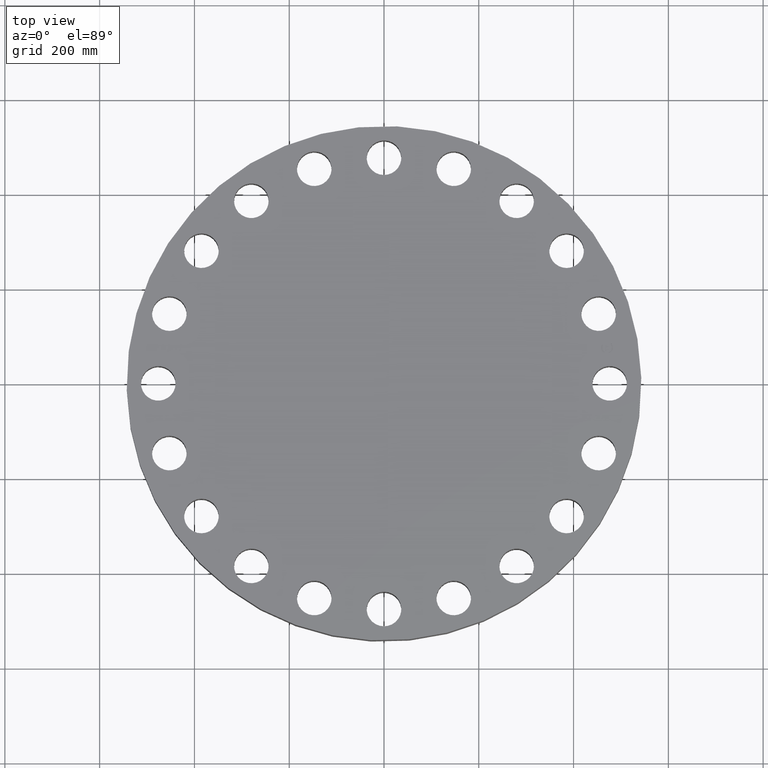
[diagram: clean part render]
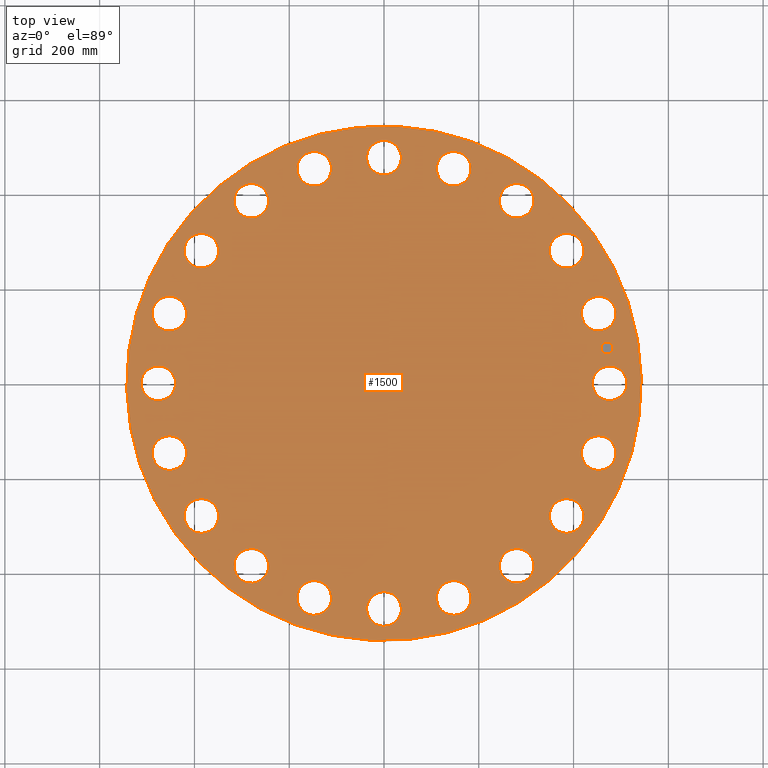
[diagram: same view with one face highlighted and labeled with its STEP entity id]
A machine part, top view. The second image highlights one B-rep face of the part: STEP entity #1500.
In plain terms, the highlighted planar face has unit normal (0, 0, -1).
Its self-contained STEP definition (entity closure, byte-faithful):
#65=AXIS2_PLACEMENT_3D('Circle Axis2P3D',#63,#64,$) ;
#82=AXIS2_PLACEMENT_3D('Circle Axis2P3D',#80,#81,$) ;
#115=AXIS2_PLACEMENT_3D('Circle Axis2P3D',#113,#114,$) ;
#139=AXIS2_PLACEMENT_3D('Circle Axis2P3D',#137,#138,$) ;
#597=AXIS2_PLACEMENT_3D('Circle Axis2P3D',#595,#596,$) ;
#609=AXIS2_PLACEMENT_3D('Circle Axis2P3D',#607,#608,$) ;
#640=AXIS2_PLACEMENT_3D('Circle Axis2P3D',#638,#639,$) ;
#652=AXIS2_PLACEMENT_3D('Circle Axis2P3D',#650,#651,$) ;
#683=AXIS2_PLACEMENT_3D('Circle Axis2P3D',#681,#682,$) ;
#695=AXIS2_PLACEMENT_3D('Circle Axis2P3D',#693,#694,$) ;
#726=AXIS2_PLACEMENT_3D('Circle Axis2P3D',#724,#725,$) ;
#738=AXIS2_PLACEMENT_3D('Circle Axis2P3D',#736,#737,$) ;
#769=AXIS2_PLACEMENT_3D('Circle Axis2P3D',#767,#768,$) ;
#781=AXIS2_PLACEMENT_3D('Circle Axis2P3D',#779,#780,$) ;
#812=AXIS2_PLACEMENT_3D('Circle Axis2P3D',#810,#811,$) ;
#824=AXIS2_PLACEMENT_3D('Circle Axis2P3D',#822,#823,$) ;
#855=AXIS2_PLACEMENT_3D('Circle Axis2P3D',#853,#854,$) ;
#867=AXIS2_PLACEMENT_3D('Circle Axis2P3D',#865,#866,$) ;
#898=AXIS2_PLACEMENT_3D('Circle Axis2P3D',#896,#897,$) ;
#910=AXIS2_PLACEMENT_3D('Circle Axis2P3D',#908,#909,$) ;
#941=AXIS2_PLACEMENT_3D('Circle Axis2P3D',#939,#940,$) ;
#953=AXIS2_PLACEMENT_3D('Circle Axis2P3D',#951,#952,$) ;
#984=AXIS2_PLACEMENT_3D('Circle Axis2P3D',#982,#983,$) ;
#996=AXIS2_PLACEMENT_3D('Circle Axis2P3D',#994,#995,$) ;
#1027=AXIS2_PLACEMENT_3D('Circle Axis2P3D',#1025,#1026,$) ;
#1039=AXIS2_PLACEMENT_3D('Circle Axis2P3D',#1037,#1038,$) ;
#1070=AXIS2_PLACEMENT_3D('Circle Axis2P3D',#1068,#1069,$) ;
#1082=AXIS2_PLACEMENT_3D('Circle Axis2P3D',#1080,#1081,$) ;
#1113=AXIS2_PLACEMENT_3D('Circle Axis2P3D',#1111,#1112,$) ;
#1125=AXIS2_PLACEMENT_3D('Circle Axis2P3D',#1123,#1124,$) ;
#1156=AXIS2_PLACEMENT_3D('Circle Axis2P3D',#1154,#1155,$) ;
#1168=AXIS2_PLACEMENT_3D('Circle Axis2P3D',#1166,#1167,$) ;
#1199=AXIS2_PLACEMENT_3D('Circle Axis2P3D',#1197,#1198,$) ;
#1211=AXIS2_PLACEMENT_3D('Circle Axis2P3D',#1209,#1210,$) ;
#1242=AXIS2_PLACEMENT_3D('Circle Axis2P3D',#1240,#1241,$) ;
#1254=AXIS2_PLACEMENT_3D('Circle Axis2P3D',#1252,#1253,$) ;
#1285=AXIS2_PLACEMENT_3D('Circle Axis2P3D',#1283,#1284,$) ;
#1297=AXIS2_PLACEMENT_3D('Circle Axis2P3D',#1295,#1296,$) ;
#1328=AXIS2_PLACEMENT_3D('Circle Axis2P3D',#1326,#1327,$) ;
#1340=AXIS2_PLACEMENT_3D('Circle Axis2P3D',#1338,#1339,$) ;
#1371=AXIS2_PLACEMENT_3D('Circle Axis2P3D',#1369,#1370,$) ;
#1383=AXIS2_PLACEMENT_3D('Circle Axis2P3D',#1381,#1382,$) ;
#1396=AXIS2_PLACEMENT_3D('Plane Axis2P3D',#1393,#1394,#1395) ;
#1484=AXIS2_PLACEMENT_3D('Circle Axis2P3D',#1482,#1483,$) ;
#1493=AXIS2_PLACEMENT_3D('Circle Axis2P3D',#1491,#1492,$) ;
#46=CARTESIAN_POINT('Vertex',(17.4862811109,0.690372775593,6.31000000003)) ;
#60=CARTESIAN_POINT('Vertex',(20.0137188892,-0.690372775593,6.31000000003)) ;
#63=CARTESIAN_POINT('Axis2P3D Location',(18.7500000001,0.,6.31000000003)) ;
#80=CARTESIAN_POINT('Axis2P3D Location',(18.7500000001,0.,6.31000000003)) ;
#110=CARTESIAN_POINT('Vertex',(-10.2477208877,-18.7583272605,6.31000000003)) ;
#113=CARTESIAN_POINT('Axis2P3D Location',(0.,0.,6.31000000003)) ;
#117=CARTESIAN_POINT('Vertex',(10.2477208877,18.7583272605,6.31000000003)) ;
#137=CARTESIAN_POINT('Axis2P3D Location',(0.,0.,6.31000000003)) ;
#585=CARTESIAN_POINT('Vertex',(-16.8437785164,4.7469745048,6.31000000003)) ;
#592=CARTESIAN_POINT('Vertex',(-18.8208408448,6.84116278431,6.31000000003)) ;
#595=CARTESIAN_POINT('Axis2P3D Location',(-17.8323096806,5.79406864455,6.31000000003)) ;
#607=CARTESIAN_POINT('Axis2P3D Location',(-17.8323096806,5.79406864455,6.31000000003)) ;
#628=CARTESIAN_POINT('Vertex',(14.5524895233,-9.71965484655,6.31000000003)) ;
#635=CARTESIAN_POINT('Vertex',(15.7856477659,-12.3222921145,6.31000000003)) ;
#638=CARTESIAN_POINT('Axis2P3D Location',(15.1690686446,-11.0209734805,6.31000000003)) ;
#650=CARTESIAN_POINT('Axis2P3D Location',(15.1690686446,-11.0209734805,6.31000000003)) ;
#671=CARTESIAN_POINT('Vertex',(-14.5524895233,9.71965484655,6.31000000003)) ;
#678=CARTESIAN_POINT('Vertex',(-15.7856477659,12.3222921145,6.31000000003)) ;
#681=CARTESIAN_POINT('Axis2P3D Location',(-15.1690686446,11.0209734805,6.31000000003)) ;
#693=CARTESIAN_POINT('Axis2P3D Location',(-15.1690686446,11.0209734805,6.31000000003)) ;
#714=CARTESIAN_POINT('Vertex',(10.8367014624,-13.7409076511,6.31000000003)) ;
#721=CARTESIAN_POINT('Vertex',(11.2052454987,-16.5972296381,6.31000000003)) ;
#724=CARTESIAN_POINT('Axis2P3D Location',(11.0209734805,-15.1690686446,6.31000000003)) ;
#736=CARTESIAN_POINT('Axis2P3D Location',(11.0209734805,-15.1690686446,6.31000000003)) ;
#757=CARTESIAN_POINT('Vertex',(-10.8367014624,13.7409076511,6.31000000003)) ;
#764=CARTESIAN_POINT('Vertex',(-11.2052454987,16.5972296381,6.31000000003)) ;
#767=CARTESIAN_POINT('Axis2P3D Location',(-11.0209734805,15.1690686446,6.31000000003)) ;
#779=CARTESIAN_POINT('Axis2P3D Location',(-11.0209734805,15.1690686446,6.31000000003)) ;
#800=CARTESIAN_POINT('Vertex',(6.0601415586,-16.4171046762,6.31000000003)) ;
#807=CARTESIAN_POINT('Vertex',(5.52799573051,-19.247514685,6.31000000003)) ;
#810=CARTESIAN_POINT('Axis2P3D Location',(5.79406864455,-17.8323096806,6.31000000003)) ;
#822=CARTESIAN_POINT('Axis2P3D Location',(5.79406864455,-17.8323096806,6.31000000003)) ;
#843=CARTESIAN_POINT('Vertex',(-6.0601415586,16.4171046762,6.31000000003)) ;
#850=CARTESIAN_POINT('Vertex',(-5.52799573051,19.247514685,6.31000000003)) ;
#853=CARTESIAN_POINT('Axis2P3D Location',(-5.79406864455,17.8323096806,6.31000000003)) ;
#865=CARTESIAN_POINT('Axis2P3D Location',(-5.79406864455,17.8323096806,6.31000000003)) ;
#886=CARTESIAN_POINT('Vertex',(0.690372775593,-17.4862811109,6.31000000003)) ;
#893=CARTESIAN_POINT('Vertex',(-0.690372775593,-20.0137188892,6.31000000003)) ;
#896=CARTESIAN_POINT('Axis2P3D Location',(3.07351284016E-015,-18.7500000001,6.31000000003)) ;
#908=CARTESIAN_POINT('Axis2P3D Location',(3.07351284016E-015,-18.7500000001,6.31000000003)) ;
#929=CARTESIAN_POINT('Vertex',(-0.690372775593,17.4862811109,6.31000000003)) ;
#936=CARTESIAN_POINT('Vertex',(0.690372775593,20.0137188892,6.31000000003)) ;
#939=CARTESIAN_POINT('Axis2P3D Location',(-2.00976644921E-014,18.7500000001,6.31000000003)) ;
#951=CARTESIAN_POINT('Axis2P3D Location',(-2.00976644921E-014,18.7500000001,6.31000000003)) ;
#972=CARTESIAN_POINT('Vertex',(-4.7469745048,-16.8437785164,6.31000000003)) ;
#979=CARTESIAN_POINT('Vertex',(-6.84116278431,-18.8208408448,6.31000000003)) ;
#982=CARTESIAN_POINT('Axis2P3D Location',(-5.79406864455,-17.8323096806,6.31000000003)) ;
#994=CARTESIAN_POINT('Axis2P3D Location',(-5.79406864455,-17.8323096806,6.31000000003)) ;
#1015=CARTESIAN_POINT('Vertex',(4.7469745048,16.8437785164,6.31000000003)) ;
#1022=CARTESIAN_POINT('Vertex',(6.84116278431,18.8208408448,6.31000000003)) ;
#1025=CARTESIAN_POINT('Axis2P3D Location',(5.79406864455,17.8323096806,6.31000000003)) ;
#1037=CARTESIAN_POINT('Axis2P3D Location',(5.79406864455,17.8323096806,6.31000000003)) ;
#1058=CARTESIAN_POINT('Vertex',(-9.71965484655,-14.5524895233,6.31000000003)) ;
#1065=CARTESIAN_POINT('Vertex',(-12.3222921145,-15.7856477659,6.31000000003)) ;
#1068=CARTESIAN_POINT('Axis2P3D Location',(-11.0209734805,-15.1690686446,6.31000000003)) ;
#1080=CARTESIAN_POINT('Axis2P3D Location',(-11.0209734805,-15.1690686446,6.31000000003)) ;
#1101=CARTESIAN_POINT('Vertex',(9.71965484655,14.5524895233,6.31000000003)) ;
#1108=CARTESIAN_POINT('Vertex',(12.3222921145,15.7856477659,6.31000000003)) ;
#1111=CARTESIAN_POINT('Axis2P3D Location',(11.0209734805,15.1690686446,6.31000000003)) ;
#1123=CARTESIAN_POINT('Axis2P3D Location',(11.0209734805,15.1690686446,6.31000000003)) ;
#1144=CARTESIAN_POINT('Vertex',(-13.7409076511,-10.8367014624,6.31000000003)) ;
#1151=CARTESIAN_POINT('Vertex',(-16.5972296381,-11.2052454987,6.31000000003)) ;
#1154=CARTESIAN_POINT('Axis2P3D Location',(-15.1690686446,-11.0209734805,6.31000000003)) ;
#1166=CARTESIAN_POINT('Axis2P3D Location',(-15.1690686446,-11.0209734805,6.31000000003)) ;
#1187=CARTESIAN_POINT('Vertex',(13.7409076511,10.8367014624,6.31000000003)) ;
#1194=CARTESIAN_POINT('Vertex',(16.5972296381,11.2052454987,6.31000000003)) ;
#1197=CARTESIAN_POINT('Axis2P3D Location',(15.1690686446,11.0209734805,6.31000000003)) ;
#1209=CARTESIAN_POINT('Axis2P3D Location',(15.1690686446,11.0209734805,6.31000000003)) ;
#1230=CARTESIAN_POINT('Vertex',(-16.4171046762,-6.0601415586,6.31000000003)) ;
#1237=CARTESIAN_POINT('Vertex',(-19.247514685,-5.52799573051,6.31000000003)) ;
#1240=CARTESIAN_POINT('Axis2P3D Location',(-17.8323096806,-5.79406864455,6.31000000003)) ;
#1252=CARTESIAN_POINT('Axis2P3D Location',(-17.8323096806,-5.79406864455,6.31000000003)) ;
#1273=CARTESIAN_POINT('Vertex',(16.4171046762,6.0601415586,6.31000000003)) ;
#1280=CARTESIAN_POINT('Vertex',(19.247514685,5.52799573051,6.31000000003)) ;
#1283=CARTESIAN_POINT('Axis2P3D Location',(17.8323096806,5.79406864455,6.31000000003)) ;
#1295=CARTESIAN_POINT('Axis2P3D Location',(17.8323096806,5.79406864455,6.31000000003)) ;
#1316=CARTESIAN_POINT('Vertex',(-17.4862811109,-0.690372775593,6.31000000003)) ;
#1323=CARTESIAN_POINT('Vertex',(-20.0137188892,0.690372775593,6.31000000003)) ;
#1326=CARTESIAN_POINT('Axis2P3D Location',(-18.7500000001,-1.06228854331E-014,6.31000000003)) ;
#1338=CARTESIAN_POINT('Axis2P3D Location',(-18.7500000001,-1.06228854331E-014,6.31000000003)) ;
#1359=CARTESIAN_POINT('Vertex',(16.8437785164,-4.7469745048,6.31000000003)) ;
#1366=CARTESIAN_POINT('Vertex',(18.8208408448,-6.84116278431,6.31000000003)) ;
#1369=CARTESIAN_POINT('Axis2P3D Location',(17.8323096806,-5.79406864455,6.31000000003)) ;
#1381=CARTESIAN_POINT('Axis2P3D Location',(17.8323096806,-5.79406864455,6.31000000003)) ;
#1393=CARTESIAN_POINT('Axis2P3D Location',(0.,21.3750000001,6.31000000003)) ;
#1482=CARTESIAN_POINT('Axis2P3D Location',(18.5191563862,2.93314621952,6.31000000003)) ;
#1486=CARTESIAN_POINT('Vertex',(18.4409391537,3.42699038982,6.31000000003)) ;
#1488=CARTESIAN_POINT('Vertex',(18.5973736188,2.43930204922,6.31000000003)) ;
#1491=CARTESIAN_POINT('Axis2P3D Location',(18.5191563862,2.93314621952,6.31000000003)) ;
#64=DIRECTION('Axis2P3D Direction',(0.,-0.,-0.0393700787402)) ;
#81=DIRECTION('Axis2P3D Direction',(0.,-0.,-0.0393700787402)) ;
#114=DIRECTION('Axis2P3D Direction',(0.,0.,-0.0393700787402)) ;
#138=DIRECTION('Axis2P3D Direction',(0.,0.,-0.0393700787402)) ;
#596=DIRECTION('Axis2P3D Direction',(0.,0.,-0.0393700787402)) ;
#608=DIRECTION('Axis2P3D Direction',(0.,0.,-0.0393700787402)) ;
#639=DIRECTION('Axis2P3D Direction',(0.,-0.,-0.0393700787402)) ;
#651=DIRECTION('Axis2P3D Direction',(0.,-0.,-0.0393700787402)) ;
#682=DIRECTION('Axis2P3D Direction',(0.,0.,-0.0393700787402)) ;
#694=DIRECTION('Axis2P3D Direction',(0.,0.,-0.0393700787402)) ;
#725=DIRECTION('Axis2P3D Direction',(0.,-0.,-0.0393700787402)) ;
#737=DIRECTION('Axis2P3D Direction',(0.,-0.,-0.0393700787402)) ;
#768=DIRECTION('Axis2P3D Direction',(0.,0.,-0.0393700787402)) ;
#780=DIRECTION('Axis2P3D Direction',(0.,0.,-0.0393700787402)) ;
#811=DIRECTION('Axis2P3D Direction',(0.,-0.,-0.0393700787402)) ;
#823=DIRECTION('Axis2P3D Direction',(0.,-0.,-0.0393700787402)) ;
#854=DIRECTION('Axis2P3D Direction',(0.,0.,-0.0393700787402)) ;
#866=DIRECTION('Axis2P3D Direction',(0.,0.,-0.0393700787402)) ;
#897=DIRECTION('Axis2P3D Direction',(0.,-0.,-0.0393700787402)) ;
#909=DIRECTION('Axis2P3D Direction',(0.,-0.,-0.0393700787402)) ;
#940=DIRECTION('Axis2P3D Direction',(0.,0.,-0.0393700787402)) ;
#952=DIRECTION('Axis2P3D Direction',(0.,0.,-0.0393700787402)) ;
#983=DIRECTION('Axis2P3D Direction',(-0.,0.,-0.0393700787402)) ;
#995=DIRECTION('Axis2P3D Direction',(-0.,0.,-0.0393700787402)) ;
#1026=DIRECTION('Axis2P3D Direction',(0.,0.,-0.0393700787402)) ;
#1038=DIRECTION('Axis2P3D Direction',(0.,0.,-0.0393700787402)) ;
#1069=DIRECTION('Axis2P3D Direction',(-0.,0.,-0.0393700787402)) ;
#1081=DIRECTION('Axis2P3D Direction',(-0.,0.,-0.0393700787402)) ;
#1112=DIRECTION('Axis2P3D Direction',(0.,0.,-0.0393700787402)) ;
#1124=DIRECTION('Axis2P3D Direction',(0.,0.,-0.0393700787402)) ;
#1155=DIRECTION('Axis2P3D Direction',(-0.,0.,-0.0393700787402)) ;
#1167=DIRECTION('Axis2P3D Direction',(-0.,0.,-0.0393700787402)) ;
#1198=DIRECTION('Axis2P3D Direction',(0.,0.,-0.0393700787402)) ;
#1210=DIRECTION('Axis2P3D Direction',(0.,0.,-0.0393700787402)) ;
#1241=DIRECTION('Axis2P3D Direction',(-0.,0.,-0.0393700787402)) ;
#1253=DIRECTION('Axis2P3D Direction',(-0.,0.,-0.0393700787402)) ;
#1284=DIRECTION('Axis2P3D Direction',(0.,0.,-0.0393700787402)) ;
#1296=DIRECTION('Axis2P3D Direction',(0.,0.,-0.0393700787402)) ;
#1327=DIRECTION('Axis2P3D Direction',(-0.,0.,-0.0393700787402)) ;
#1339=DIRECTION('Axis2P3D Direction',(-0.,0.,-0.0393700787402)) ;
#1370=DIRECTION('Axis2P3D Direction',(0.,-0.,-0.0393700787402)) ;
#1382=DIRECTION('Axis2P3D Direction',(0.,-0.,-0.0393700787402)) ;
#1394=DIRECTION('Axis2P3D Direction',(0.,0.,-0.0393700787402)) ;
#1395=DIRECTION('Axis2P3D XDirection',(0.0393700787402,0.,0.)) ;
#1483=DIRECTION('Axis2P3D Direction',(0.,0.,-0.0393700787402)) ;
#1492=DIRECTION('Axis2P3D Direction',(0.,0.,-0.0393700787402)) ;
#1399=ORIENTED_EDGE('',*,*,#141,.F.) ;
#1400=ORIENTED_EDGE('',*,*,#119,.F.) ;
#1403=ORIENTED_EDGE('',*,*,#67,.T.) ;
#1404=ORIENTED_EDGE('',*,*,#84,.T.) ;
#1407=ORIENTED_EDGE('',*,*,#1385,.T.) ;
#1408=ORIENTED_EDGE('',*,*,#1373,.T.) ;
#1411=ORIENTED_EDGE('',*,*,#654,.T.) ;
#1412=ORIENTED_EDGE('',*,*,#642,.T.) ;
#1415=ORIENTED_EDGE('',*,*,#740,.T.) ;
#1416=ORIENTED_EDGE('',*,*,#728,.T.) ;
#1419=ORIENTED_EDGE('',*,*,#826,.T.) ;
#1420=ORIENTED_EDGE('',*,*,#814,.T.) ;
#1423=ORIENTED_EDGE('',*,*,#912,.T.) ;
#1424=ORIENTED_EDGE('',*,*,#900,.T.) ;
#1427=ORIENTED_EDGE('',*,*,#998,.T.) ;
#1428=ORIENTED_EDGE('',*,*,#986,.T.) ;
#1431=ORIENTED_EDGE('',*,*,#1084,.T.) ;
#1432=ORIENTED_EDGE('',*,*,#1072,.T.) ;
#1435=ORIENTED_EDGE('',*,*,#1170,.T.) ;
#1436=ORIENTED_EDGE('',*,*,#1158,.T.) ;
#1439=ORIENTED_EDGE('',*,*,#1256,.T.) ;
#1440=ORIENTED_EDGE('',*,*,#1244,.T.) ;
#1443=ORIENTED_EDGE('',*,*,#1342,.T.) ;
#1444=ORIENTED_EDGE('',*,*,#1330,.T.) ;
#1447=ORIENTED_EDGE('',*,*,#611,.T.) ;
#1448=ORIENTED_EDGE('',*,*,#599,.T.) ;
#1451=ORIENTED_EDGE('',*,*,#697,.T.) ;
#1452=ORIENTED_EDGE('',*,*,#685,.T.) ;
#1455=ORIENTED_EDGE('',*,*,#783,.T.) ;
#1456=ORIENTED_EDGE('',*,*,#771,.T.) ;
#1459=ORIENTED_EDGE('',*,*,#869,.T.) ;
#1460=ORIENTED_EDGE('',*,*,#857,.T.) ;
#1463=ORIENTED_EDGE('',*,*,#955,.T.) ;
#1464=ORIENTED_EDGE('',*,*,#943,.T.) ;
#1467=ORIENTED_EDGE('',*,*,#1041,.T.) ;
#1468=ORIENTED_EDGE('',*,*,#1029,.T.) ;
#1471=ORIENTED_EDGE('',*,*,#1127,.T.) ;
#1472=ORIENTED_EDGE('',*,*,#1115,.T.) ;
#1475=ORIENTED_EDGE('',*,*,#1213,.T.) ;
#1476=ORIENTED_EDGE('',*,*,#1201,.T.) ;
#1479=ORIENTED_EDGE('',*,*,#1299,.T.) ;
#1480=ORIENTED_EDGE('',*,*,#1287,.T.) ;
#1497=ORIENTED_EDGE('',*,*,#1490,.T.) ;
#1498=ORIENTED_EDGE('',*,*,#1495,.T.) ;
#1405=FACE_BOUND('',#1402,.T.) ;
#1409=FACE_BOUND('',#1406,.T.) ;
#1413=FACE_BOUND('',#1410,.T.) ;
#1417=FACE_BOUND('',#1414,.T.) ;
#1421=FACE_BOUND('',#1418,.T.) ;
#1425=FACE_BOUND('',#1422,.T.) ;
#1429=FACE_BOUND('',#1426,.T.) ;
#1433=FACE_BOUND('',#1430,.T.) ;
#1437=FACE_BOUND('',#1434,.T.) ;
#1441=FACE_BOUND('',#1438,.T.) ;
#1445=FACE_BOUND('',#1442,.T.) ;
#1449=FACE_BOUND('',#1446,.T.) ;
#1453=FACE_BOUND('',#1450,.T.) ;
#1457=FACE_BOUND('',#1454,.T.) ;
#1461=FACE_BOUND('',#1458,.T.) ;
#1465=FACE_BOUND('',#1462,.T.) ;
#1469=FACE_BOUND('',#1466,.T.) ;
#1473=FACE_BOUND('',#1470,.T.) ;
#1477=FACE_BOUND('',#1474,.T.) ;
#1481=FACE_BOUND('',#1478,.T.) ;
#1499=FACE_BOUND('',#1496,.T.) ;
#1500=ADVANCED_FACE('PartBody',(#1401,#1405,#1409,#1413,#1417,#1421,#1425,#1429,#1433,#1437,#1441,#1445,#1449,#1453,#1457,#1461,#1465,#1469,#1473,#1477,#1481,#1499),#1397,.F.) ;
#66=CIRCLE('generated circle',#65,1.44000000001) ;
#83=CIRCLE('generated circle',#82,1.44000000001) ;
#116=CIRCLE('generated circle',#115,21.3750000001) ;
#140=CIRCLE('generated circle',#139,21.3750000001) ;
#598=CIRCLE('generated circle',#597,1.44000000001) ;
#610=CIRCLE('generated circle',#609,1.44000000001) ;
#641=CIRCLE('generated circle',#640,1.44000000001) ;
#653=CIRCLE('generated circle',#652,1.44000000001) ;
#684=CIRCLE('generated circle',#683,1.44000000001) ;
#696=CIRCLE('generated circle',#695,1.44000000001) ;
#727=CIRCLE('generated circle',#726,1.44000000001) ;
#739=CIRCLE('generated circle',#738,1.44000000001) ;
#770=CIRCLE('generated circle',#769,1.44000000001) ;
#782=CIRCLE('generated circle',#781,1.44000000001) ;
#813=CIRCLE('generated circle',#812,1.44000000001) ;
#825=CIRCLE('generated circle',#824,1.44000000001) ;
#856=CIRCLE('generated circle',#855,1.44000000001) ;
#868=CIRCLE('generated circle',#867,1.44000000001) ;
#899=CIRCLE('generated circle',#898,1.44000000001) ;
#911=CIRCLE('generated circle',#910,1.44000000001) ;
#942=CIRCLE('generated circle',#941,1.44000000001) ;
#954=CIRCLE('generated circle',#953,1.44000000001) ;
#985=CIRCLE('generated circle',#984,1.44000000001) ;
#997=CIRCLE('generated circle',#996,1.44000000001) ;
#1028=CIRCLE('generated circle',#1027,1.44000000001) ;
#1040=CIRCLE('generated circle',#1039,1.44000000001) ;
#1071=CIRCLE('generated circle',#1070,1.44000000001) ;
#1083=CIRCLE('generated circle',#1082,1.44000000001) ;
#1114=CIRCLE('generated circle',#1113,1.44000000001) ;
#1126=CIRCLE('generated circle',#1125,1.44000000001) ;
#1157=CIRCLE('generated circle',#1156,1.44000000001) ;
#1169=CIRCLE('generated circle',#1168,1.44000000001) ;
#1200=CIRCLE('generated circle',#1199,1.44000000001) ;
#1212=CIRCLE('generated circle',#1211,1.44000000001) ;
#1243=CIRCLE('generated circle',#1242,1.44000000001) ;
#1255=CIRCLE('generated circle',#1254,1.44000000001) ;
#1286=CIRCLE('generated circle',#1285,1.44000000001) ;
#1298=CIRCLE('generated circle',#1297,1.44000000001) ;
#1329=CIRCLE('generated circle',#1328,1.44000000001) ;
#1341=CIRCLE('generated circle',#1340,1.44000000001) ;
#1372=CIRCLE('generated circle',#1371,1.44000000001) ;
#1384=CIRCLE('generated circle',#1383,1.44000000001) ;
#1485=CIRCLE('generated circle',#1484,0.500000000002) ;
#1494=CIRCLE('generated circle',#1493,0.500000000002) ;
#67=EDGE_CURVE('',#47,#61,#66,.T.) ;
#84=EDGE_CURVE('',#61,#47,#83,.T.) ;
#119=EDGE_CURVE('',#111,#118,#116,.T.) ;
#141=EDGE_CURVE('',#118,#111,#140,.T.) ;
#599=EDGE_CURVE('',#586,#593,#598,.T.) ;
#611=EDGE_CURVE('',#593,#586,#610,.T.) ;
#642=EDGE_CURVE('',#629,#636,#641,.T.) ;
#654=EDGE_CURVE('',#636,#629,#653,.T.) ;
#685=EDGE_CURVE('',#672,#679,#684,.T.) ;
#697=EDGE_CURVE('',#679,#672,#696,.T.) ;
#728=EDGE_CURVE('',#715,#722,#727,.T.) ;
#740=EDGE_CURVE('',#722,#715,#739,.T.) ;
#771=EDGE_CURVE('',#758,#765,#770,.T.) ;
#783=EDGE_CURVE('',#765,#758,#782,.T.) ;
#814=EDGE_CURVE('',#801,#808,#813,.T.) ;
#826=EDGE_CURVE('',#808,#801,#825,.T.) ;
#857=EDGE_CURVE('',#844,#851,#856,.T.) ;
#869=EDGE_CURVE('',#851,#844,#868,.T.) ;
#900=EDGE_CURVE('',#887,#894,#899,.T.) ;
#912=EDGE_CURVE('',#894,#887,#911,.T.) ;
#943=EDGE_CURVE('',#930,#937,#942,.T.) ;
#955=EDGE_CURVE('',#937,#930,#954,.T.) ;
#986=EDGE_CURVE('',#973,#980,#985,.T.) ;
#998=EDGE_CURVE('',#980,#973,#997,.T.) ;
#1029=EDGE_CURVE('',#1016,#1023,#1028,.T.) ;
#1041=EDGE_CURVE('',#1023,#1016,#1040,.T.) ;
#1072=EDGE_CURVE('',#1059,#1066,#1071,.T.) ;
#1084=EDGE_CURVE('',#1066,#1059,#1083,.T.) ;
#1115=EDGE_CURVE('',#1102,#1109,#1114,.T.) ;
#1127=EDGE_CURVE('',#1109,#1102,#1126,.T.) ;
#1158=EDGE_CURVE('',#1145,#1152,#1157,.T.) ;
#1170=EDGE_CURVE('',#1152,#1145,#1169,.T.) ;
#1201=EDGE_CURVE('',#1188,#1195,#1200,.T.) ;
#1213=EDGE_CURVE('',#1195,#1188,#1212,.T.) ;
#1244=EDGE_CURVE('',#1231,#1238,#1243,.T.) ;
#1256=EDGE_CURVE('',#1238,#1231,#1255,.T.) ;
#1287=EDGE_CURVE('',#1274,#1281,#1286,.T.) ;
#1299=EDGE_CURVE('',#1281,#1274,#1298,.T.) ;
#1330=EDGE_CURVE('',#1317,#1324,#1329,.T.) ;
#1342=EDGE_CURVE('',#1324,#1317,#1341,.T.) ;
#1373=EDGE_CURVE('',#1360,#1367,#1372,.T.) ;
#1385=EDGE_CURVE('',#1367,#1360,#1384,.T.) ;
#1490=EDGE_CURVE('',#1487,#1489,#1485,.T.) ;
#1495=EDGE_CURVE('',#1489,#1487,#1494,.T.) ;
#1398=EDGE_LOOP('',(#1399,#1400)) ;
#1402=EDGE_LOOP('',(#1403,#1404)) ;
#1406=EDGE_LOOP('',(#1407,#1408)) ;
#1410=EDGE_LOOP('',(#1411,#1412)) ;
#1414=EDGE_LOOP('',(#1415,#1416)) ;
#1418=EDGE_LOOP('',(#1419,#1420)) ;
#1422=EDGE_LOOP('',(#1423,#1424)) ;
#1426=EDGE_LOOP('',(#1427,#1428)) ;
#1430=EDGE_LOOP('',(#1431,#1432)) ;
#1434=EDGE_LOOP('',(#1435,#1436)) ;
#1438=EDGE_LOOP('',(#1439,#1440)) ;
#1442=EDGE_LOOP('',(#1443,#1444)) ;
#1446=EDGE_LOOP('',(#1447,#1448)) ;
#1450=EDGE_LOOP('',(#1451,#1452)) ;
#1454=EDGE_LOOP('',(#1455,#1456)) ;
#1458=EDGE_LOOP('',(#1459,#1460)) ;
#1462=EDGE_LOOP('',(#1463,#1464)) ;
#1466=EDGE_LOOP('',(#1467,#1468)) ;
#1470=EDGE_LOOP('',(#1471,#1472)) ;
#1474=EDGE_LOOP('',(#1475,#1476)) ;
#1478=EDGE_LOOP('',(#1479,#1480)) ;
#1496=EDGE_LOOP('',(#1497,#1498)) ;
#1401=FACE_OUTER_BOUND('',#1398,.T.) ;
#1397=PLANE('',#1396) ;
#47=VERTEX_POINT('',#46) ;
#61=VERTEX_POINT('',#60) ;
#111=VERTEX_POINT('',#110) ;
#118=VERTEX_POINT('',#117) ;
#586=VERTEX_POINT('',#585) ;
#593=VERTEX_POINT('',#592) ;
#629=VERTEX_POINT('',#628) ;
#636=VERTEX_POINT('',#635) ;
#672=VERTEX_POINT('',#671) ;
#679=VERTEX_POINT('',#678) ;
#715=VERTEX_POINT('',#714) ;
#722=VERTEX_POINT('',#721) ;
#758=VERTEX_POINT('',#757) ;
#765=VERTEX_POINT('',#764) ;
#801=VERTEX_POINT('',#800) ;
#808=VERTEX_POINT('',#807) ;
#844=VERTEX_POINT('',#843) ;
#851=VERTEX_POINT('',#850) ;
#887=VERTEX_POINT('',#886) ;
#894=VERTEX_POINT('',#893) ;
#930=VERTEX_POINT('',#929) ;
#937=VERTEX_POINT('',#936) ;
#973=VERTEX_POINT('',#972) ;
#980=VERTEX_POINT('',#979) ;
#1016=VERTEX_POINT('',#1015) ;
#1023=VERTEX_POINT('',#1022) ;
#1059=VERTEX_POINT('',#1058) ;
#1066=VERTEX_POINT('',#1065) ;
#1102=VERTEX_POINT('',#1101) ;
#1109=VERTEX_POINT('',#1108) ;
#1145=VERTEX_POINT('',#1144) ;
#1152=VERTEX_POINT('',#1151) ;
#1188=VERTEX_POINT('',#1187) ;
#1195=VERTEX_POINT('',#1194) ;
#1231=VERTEX_POINT('',#1230) ;
#1238=VERTEX_POINT('',#1237) ;
#1274=VERTEX_POINT('',#1273) ;
#1281=VERTEX_POINT('',#1280) ;
#1317=VERTEX_POINT('',#1316) ;
#1324=VERTEX_POINT('',#1323) ;
#1360=VERTEX_POINT('',#1359) ;
#1367=VERTEX_POINT('',#1366) ;
#1487=VERTEX_POINT('',#1486) ;
#1489=VERTEX_POINT('',#1488) ;